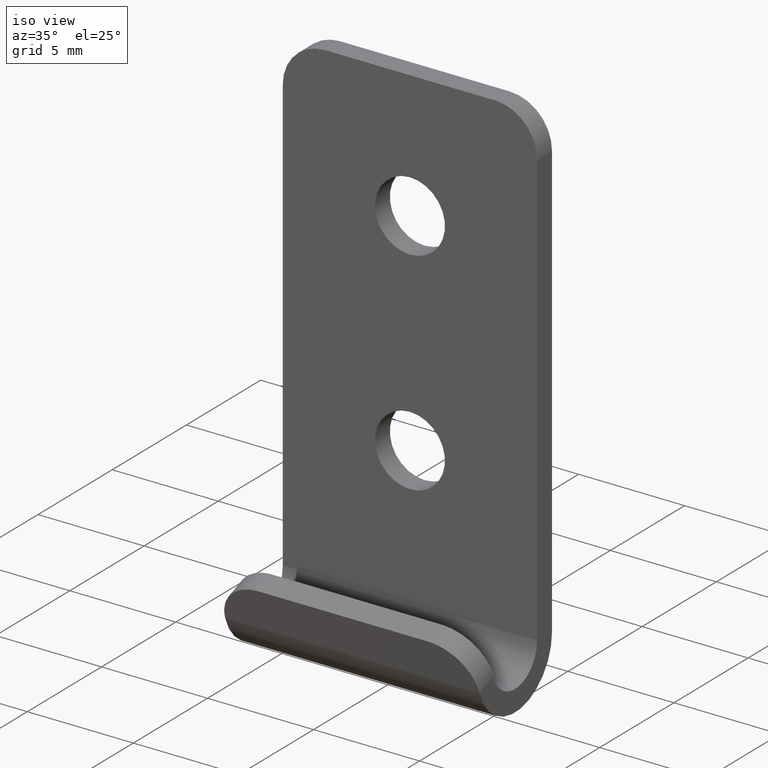
[diagram: clean part render]
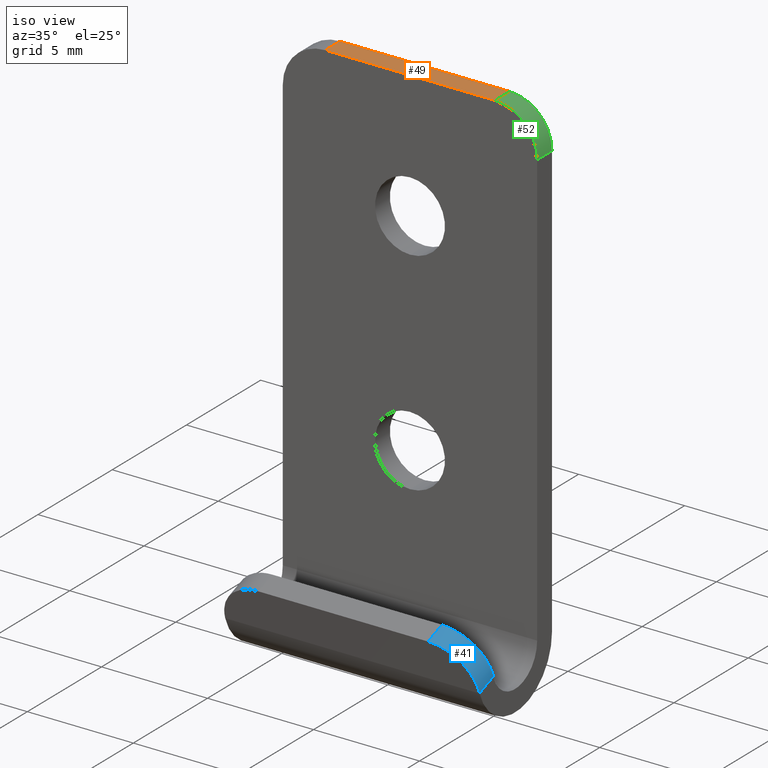
[diagram: same view with three faces highlighted in distinct colors, each labeled with its STEP entity id]
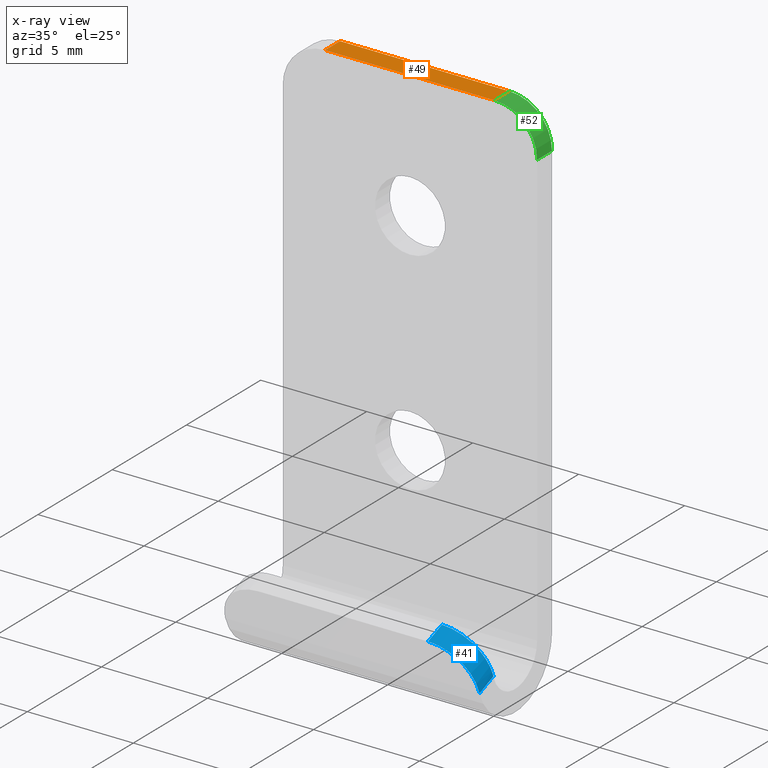
[diagram: x-ray of the same camera — body ghosted, the three highlighted faces saturated]
A machine part, iso view with three faces highlighted in distinct colors.
The next image is the same camera in x-ray (body ghosted, the three faces saturated) — at least one of them is partly hidden behind the body in this view.
Their STEP definitions:

[orange] entity #49 — the highlighted planar face has unit normal (0, 0, -1).
#49=ADVANCED_FACE('',(#151),#150,.F.);
#150=PLANE('',#292);
#151=FACE_OUTER_BOUND('',#293,.T.);
#289=CARTESIAN_POINT('',(4.80000000000E+00,1.40000000000E+00,2.50000000000E+01));
#290=DIRECTION('',(0.00000000000E+00,0.00000000000E+00,-1.00000000000E+00));
#291=DIRECTION('',(-1.00000000000E+00,0.00000000000E+00,0.00000000000E+00));
#292=AXIS2_PLACEMENT_3D('',#289,#290,#291);
#293=EDGE_LOOP('',(#390,#391,#392,#393));
#390=ORIENTED_EDGE('',*,*,#466,.T.);
#391=ORIENTED_EDGE('',*,*,#467,.T.);
#392=ORIENTED_EDGE('',*,*,#459,.F.);
#393=ORIENTED_EDGE('',*,*,#468,.T.);
#459=EDGE_CURVE('',#662,#663,#664,.T.);
#466=EDGE_CURVE('',#710,#711,#712,.T.);
#467=EDGE_CURVE('',#711,#663,#718,.T.);
#468=EDGE_CURVE('',#662,#710,#724,.T.);
#662=VERTEX_POINT('',#905);
#663=VERTEX_POINT('',#906);
#664=LINE('',#907,#908);
#710=VERTEX_POINT('',#938);
#711=VERTEX_POINT('',#939);
#712=LINE('',#940,#941);
#718=LINE('',#943,#944);
#724=LINE('',#946,#947);
#905=CARTESIAN_POINT('',(4.00000000000E+00,1.50000000000E+00,2.50000000000E+01));
#906=CARTESIAN_POINT('',(-4.00000000000E+00,1.50000000000E+00,2.50000000000E+01));
#907=CARTESIAN_POINT('',(4.00000000000E+00,1.50000000000E+00,2.50000000000E+01));
#908=VECTOR('',#909,8.00000000000E+00);
#909=DIRECTION('',(-1.00000000000E+00,0.00000000000E+00,0.00000000000E+00));
#938=CARTESIAN_POINT('',(4.00000000000E+00,2.50000000000E+00,2.50000000000E+01));
#939=CARTESIAN_POINT('',(-4.00000000000E+00,2.50000000000E+00,2.50000000000E+01));
#940=CARTESIAN_POINT('',(4.00000000000E+00,2.50000000000E+00,2.50000000000E+01));
#941=VECTOR('',#942,8.00000000000E+00);
#942=DIRECTION('',(-1.00000000000E+00,0.00000000000E+00,0.00000000000E+00));
#943=CARTESIAN_POINT('',(-4.00000000000E+00,2.50000000000E+00,2.50000000000E+01));
#944=VECTOR('',#945,1.00000000000E+00);
#945=DIRECTION('',(0.00000000000E+00,-1.00000000000E+00,0.00000000000E+00));
#946=CARTESIAN_POINT('',(4.00000000000E+00,1.50000000000E+00,2.50000000000E+01));
#947=VECTOR('',#948,1.00000000000E+00);
#948=DIRECTION('',(0.00000000000E+00,1.00000000000E+00,0.00000000000E+00));

[blue] entity #41 — the highlighted cylindrical surface (partial cylindrical patch) has radius 2 mm, axis along (-0, -0.9342, -0.3567).
#41=ADVANCED_FACE('',(#69),#68,.T.);
#68=CYLINDRICAL_SURFACE('',#250,2.00000000000E+00);
#69=FACE_OUTER_BOUND('',#251,.T.);
#247=CARTESIAN_POINT('',(4.00000000000E+00,-8.82131893880E-01,2.31062847029E+00));
#248=DIRECTION('',(-0.00000000000E+00,-9.34232945811E-01,-3.56663430928E-01));
#249=DIRECTION('',(-0.00000000000E+00,3.56663430928E-01,-9.34232945811E-01));
#250=AXIS2_PLACEMENT_3D('',#247,#248,#249);
#251=EDGE_LOOP('',(#340,#341,#342,#343));
#340=ORIENTED_EDGE('',*,*,#436,.F.);
#341=ORIENTED_EDGE('',*,*,#437,.F.);
#342=ORIENTED_EDGE('',*,*,#438,.F.);
#343=ORIENTED_EDGE('',*,*,#439,.F.);
#436=EDGE_CURVE('',#508,#509,#510,.T.);
#437=EDGE_CURVE('',#516,#508,#517,.T.);
#438=EDGE_CURVE('',#523,#516,#524,.T.);
#439=EDGE_CURVE('',#509,#523,#530,.T.);
#508=VERTEX_POINT('',#816);
#509=VERTEX_POINT('',#817);
#510=(BOUNDED_CURVE() B_SPLINE_CURVE(2,(#818,#819,#820),.UNSPECIFIED.,.F.,.F.) B_SPLINE_CURVE_WITH_KNOTS((3,3),(-6.28318530718E+00,-4.71238898038E+00),.UNSPECIFIED.) CURVE() GEOMETRIC_REPRESENTATION_ITEM() RATIONAL_B_SPLINE_CURVE((1.00000000000E+00,7.07106781187E-01,1.00000000000E+00)) REPRESENTATION_ITEM('') );
#516=VERTEX_POINT('',#821);
#517=LINE('',#822,#823);
#523=VERTEX_POINT('',#825);
#524=(BOUNDED_CURVE() B_SPLINE_CURVE(2,(#826,#827,#828),.UNSPECIFIED.,.F.,.F.) B_SPLINE_CURVE_WITH_KNOTS((3,3),(-1.57079632679E+00,-1.73472347598E-15),.UNSPECIFIED.) CURVE() GEOMETRIC_REPRESENTATION_ITEM() RATIONAL_B_SPLINE_CURVE((1.00000000000E+00,7.07106781187E-01,1.00000000000E+00)) REPRESENTATION_ITEM('') );
#530=LINE('',#829,#830);
#816=CARTESIAN_POINT('',(4.00000000000E+00,-2.06457288071E+00,4.00000000000E+00));
#817=CARTESIAN_POINT('',(6.00000000000E+00,-1.44574889648E+00,2.09545561134E+00));
#818=CARTESIAN_POINT('',(4.00000000000E+00,-2.06457288071E+00,4.00000000000E+00));
#819=CARTESIAN_POINT('',(6.00000000000E+00,-2.06457288071E+00,4.00000000000E+00));
#820=CARTESIAN_POINT('',(6.00000000000E+00,-1.44574889648E+00,2.09545561134E+00));
#821=CARTESIAN_POINT('',(4.00000000000E+00,-3.00000000000E+00,3.64288066778E+00));
#822=CARTESIAN_POINT('',(4.00000000000E+00,-3.00000000000E+00,3.64288066778E+00));
#823=VECTOR('',#824,1.00127823953E+00);
#824=DIRECTION('',(0.00000000000E+00,9.34232945811E-01,3.56663430928E-01));
#825=CARTESIAN_POINT('',(6.00000000000E+00,-2.38117601577E+00,1.73833627912E+00));
#826=CARTESIAN_POINT('',(6.00000000000E+00,-2.38117601577E+00,1.73833627912E+00));
#827=CARTESIAN_POINT('',(6.00000000000E+00,-3.00000000000E+00,3.64288066778E+00));
#828=CARTESIAN_POINT('',(4.00000000000E+00,-3.00000000000E+00,3.64288066778E+00));
#829=CARTESIAN_POINT('',(6.00000000000E+00,-1.44574889648E+00,2.09545561134E+00));
#830=VECTOR('',#831,1.00127823953E+00);
#831=DIRECTION('',(0.00000000000E+00,-9.34232945811E-01,-3.56663430928E-01));

[green] entity #52 — the highlighted cylindrical surface (partial cylindrical patch) has radius 2 mm, axis along (-0, -1, -0).
#52=ADVANCED_FACE('',(#183),#182,.T.);
#182=CYLINDRICAL_SURFACE('',#309,2.00000000000E+00);
#183=FACE_OUTER_BOUND('',#310,.T.);
#306=CARTESIAN_POINT('',(4.00000000000E+00,0.00000000000E+00,2.30000000000E+01));
#307=DIRECTION('',(-0.00000000000E+00,-1.00000000000E+00,-0.00000000000E+00));
#308=DIRECTION('',(-0.00000000000E+00,0.00000000000E+00,-1.00000000000E+00));
#309=AXIS2_PLACEMENT_3D('',#306,#307,#308);
#310=EDGE_LOOP('',(#408,#409,#410,#411));
#408=ORIENTED_EDGE('',*,*,#470,.F.);
#409=ORIENTED_EDGE('',*,*,#468,.F.);
#410=ORIENTED_EDGE('',*,*,#461,.F.);
#411=ORIENTED_EDGE('',*,*,#454,.F.);
#454=EDGE_CURVE('',#623,#630,#631,.T.);
#461=EDGE_CURVE('',#630,#662,#676,.T.);
#468=EDGE_CURVE('',#662,#710,#724,.T.);
#470=EDGE_CURVE('',#710,#623,#736,.T.);
#623=VERTEX_POINT('',#883);
#630=VERTEX_POINT('',#887);
#631=LINE('',#888,#889);
#662=VERTEX_POINT('',#905);
#676=CIRCLE('',#917,2.00000000000E+00);
#710=VERTEX_POINT('',#938);
#724=LINE('',#946,#947);
#736=CIRCLE('',#956,2.00000000000E+00);
#883=CARTESIAN_POINT('',(6.00000000000E+00,2.50000000000E+00,2.30000000000E+01));
#887=CARTESIAN_POINT('',(6.00000000000E+00,1.50000000000E+00,2.30000000000E+01));
#888=CARTESIAN_POINT('',(6.00000000000E+00,2.50000000000E+00,2.30000000000E+01));
#889=VECTOR('',#890,1.00000000000E+00);
#890=DIRECTION('',(0.00000000000E+00,-1.00000000000E+00,0.00000000000E+00));
#905=CARTESIAN_POINT('',(4.00000000000E+00,1.50000000000E+00,2.50000000000E+01));
#914=CARTESIAN_POINT('',(4.00000000000E+00,1.50000000000E+00,2.30000000000E+01));
#915=DIRECTION('',(0.00000000000E+00,-1.00000000000E+00,6.26427921881E-16));
#916=DIRECTION('',(-0.00000000000E+00,-6.26427921881E-16,-1.00000000000E+00));
#917=AXIS2_PLACEMENT_3D('',#914,#915,#916);
#938=CARTESIAN_POINT('',(4.00000000000E+00,2.50000000000E+00,2.50000000000E+01));
#946=CARTESIAN_POINT('',(4.00000000000E+00,1.50000000000E+00,2.50000000000E+01));
#947=VECTOR('',#948,1.00000000000E+00);
#948=DIRECTION('',(0.00000000000E+00,1.00000000000E+00,0.00000000000E+00));
#953=CARTESIAN_POINT('',(4.00000000000E+00,2.50000000000E+00,2.30000000000E+01));
#954=DIRECTION('',(-0.00000000000E+00,1.00000000000E+00,-6.36065274525E-16));
#955=DIRECTION('',(-0.00000000000E+00,6.36065274525E-16,1.00000000000E+00));
#956=AXIS2_PLACEMENT_3D('',#953,#954,#955);